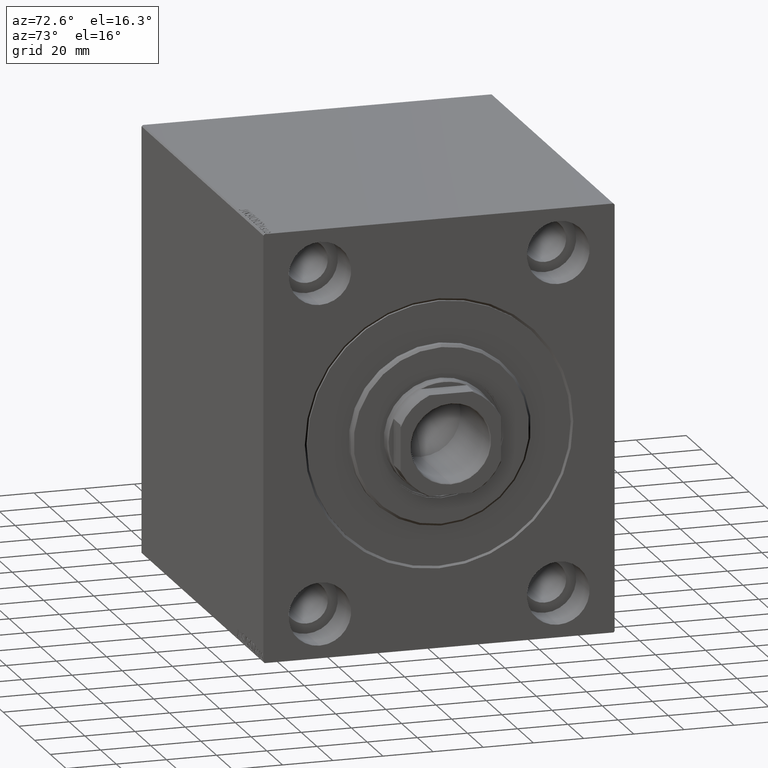
[diagram: clean part render]
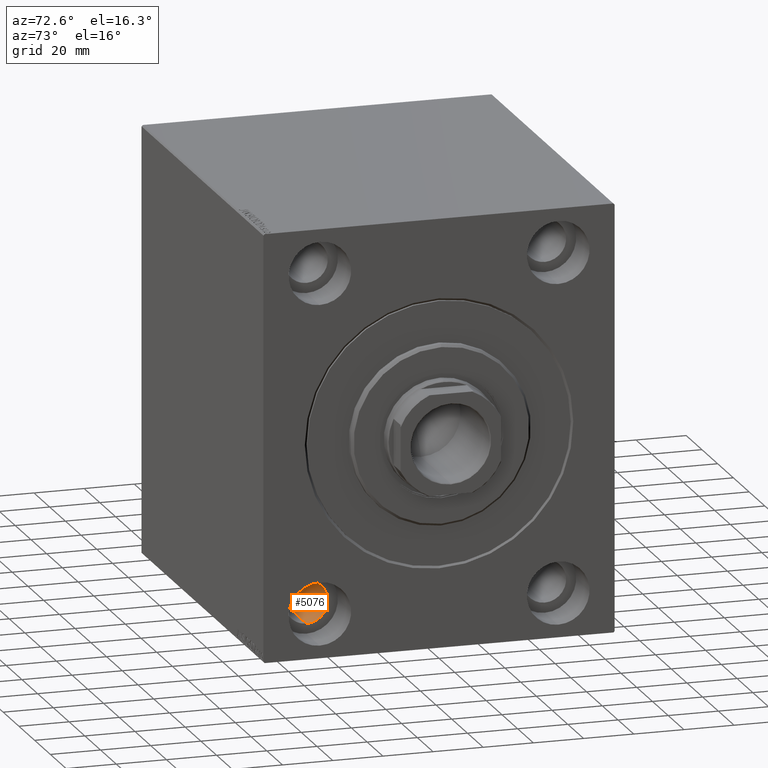
[diagram: same view with one face highlighted and labeled with its STEP entity id]
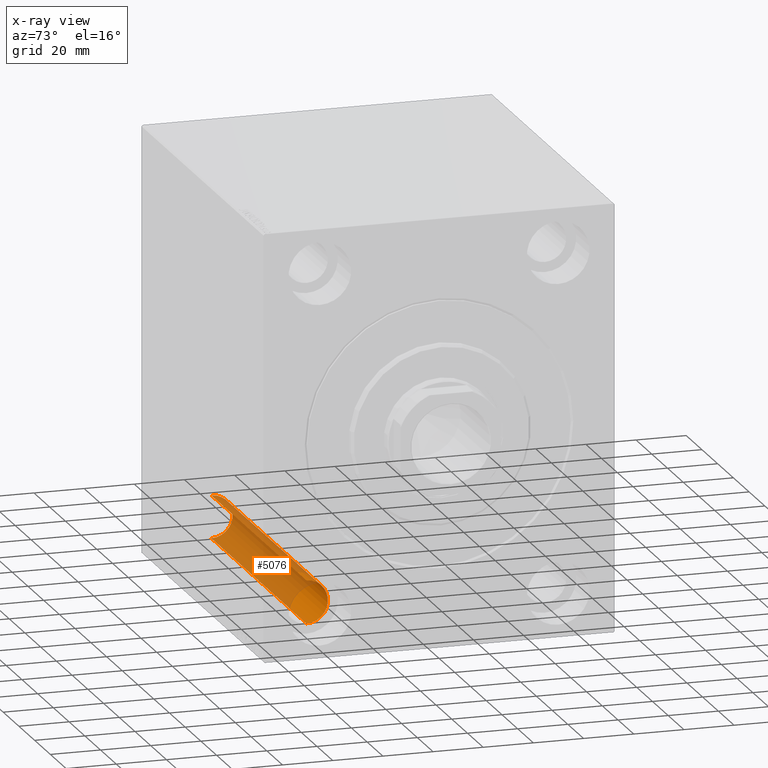
[diagram: x-ray of the same camera — body ghosted, the highlighted face saturated]
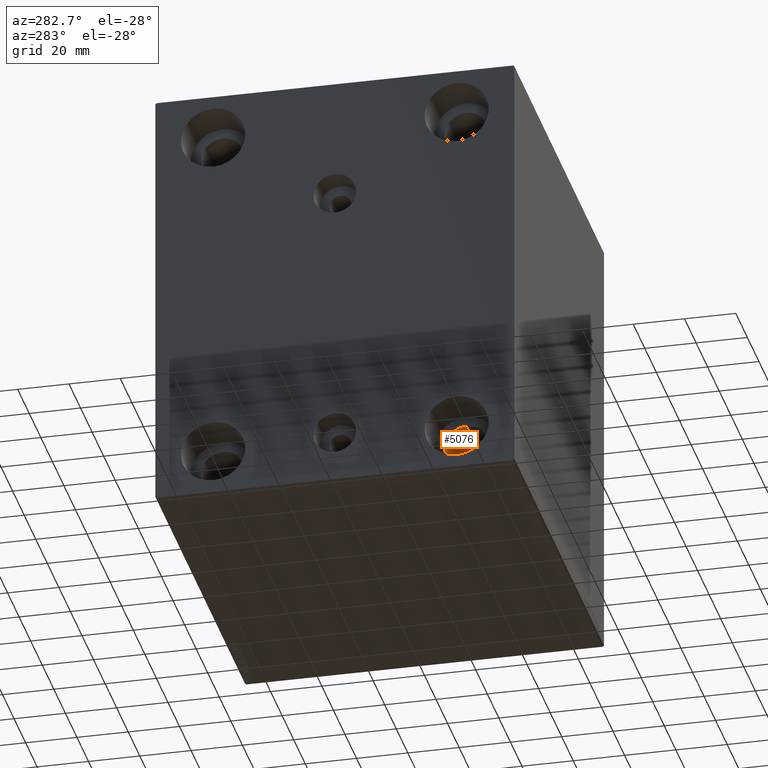
[diagram: same view with one face highlighted and labeled with its STEP entity id]
A machine part, auxiliary view. The second image highlights one B-rep face of the part: STEP entity #5076.
The next image is the same camera in x-ray: the body ghosted, the highlighted face saturated — about 78% of this face is hidden behind the body in this view.
A second angle (auxiliary view) of the same face is appended — the face is thin or edge-on in the first view.
In plain terms, the highlighted cylindrical surface (edge-blend (fillet) strip) has radius 8.5 mm, axis along (1, -0, 0).
Its self-contained STEP definition (entity closure, byte-faithful):
#26 = AXIS2_PLACEMENT_3D ( 'NONE', #4113, #14883, #35533 ) ;
#2374 = LINE ( 'NONE', #40083, #34756 ) ;
#3090 = AXIS2_PLACEMENT_3D ( 'NONE', #5188, #35510, #15506 ) ;
#3217 = VERTEX_POINT ( 'NONE', #20337 ) ;
#3733 = VERTEX_POINT ( 'NONE', #7381 ) ;
#4113 = CARTESIAN_POINT ( 'NONE',  ( 155.0000000000000284, -47.50000000000000000, 67.49999999999998579 ) ) ;
#5076 = ADVANCED_FACE ( 'NONE', ( #21399 ), #18037, .F. ) ;
#5188 = CARTESIAN_POINT ( 'NONE',  ( 138.0000000000000000, -47.50000000000000000, 67.49999999999998579 ) ) ;
#6588 = EDGE_CURVE ( 'NONE', #37570, #3217, #43804, .T. ) ;
#7088 = EDGE_CURVE ( 'NONE', #3733, #3217, #25161, .T. ) ;
#7179 = CARTESIAN_POINT ( 'NONE',  ( 17.00000000000001421, -47.50000000000000000, 75.99999999999998579 ) ) ;
#7381 = CARTESIAN_POINT ( 'NONE',  ( 138.0000000000000000, -47.50000000000000000, 59.00000000000000000 ) ) ;
#8714 = VECTOR ( 'NONE', #21805, 1000.000000000000000 ) ;
#11693 = CIRCLE ( 'NONE', #3090, 8.499999999999992895 ) ;
#14883 = DIRECTION ( 'NONE',  ( -1.000000000000000000, -0.000000000000000000, -0.000000000000000000 ) ) ;
#15506 = DIRECTION ( 'NONE',  ( 0.000000000000000000, 0.000000000000000000, -1.000000000000000000 ) ) ;
#18037 = CYLINDRICAL_SURFACE ( 'NONE', #26, 8.499999999999992895 ) ;
#20337 = CARTESIAN_POINT ( 'NONE',  ( 17.00000000000001421, -47.50000000000000000, 59.00000000000000000 ) ) ;
#21263 = EDGE_CURVE ( 'NONE', #36140, #37570, #2374, .T. ) ;
#21399 = FACE_OUTER_BOUND ( 'NONE', #28957, .T. ) ;
#21805 = DIRECTION ( 'NONE',  ( -1.000000000000000000, -0.000000000000000000, -0.000000000000000000 ) ) ;
#25161 = LINE ( 'NONE', #34844, #8714 ) ;
#25320 = CARTESIAN_POINT ( 'NONE',  ( 17.00000000000001421, -47.50000000000000000, 67.49999999999998579 ) ) ;
#26389 = DIRECTION ( 'NONE',  ( -1.000000000000000000, -0.000000000000000000, -0.000000000000000000 ) ) ;
#28786 = ORIENTED_EDGE ( 'NONE', *, *, #6588, .T. ) ;
#28957 = EDGE_LOOP ( 'NONE', ( #35281, #34336, #40768, #28786 ) ) ;
#31191 = DIRECTION ( 'NONE',  ( 0.000000000000000000, 0.000000000000000000, 1.000000000000000000 ) ) ;
#34336 = ORIENTED_EDGE ( 'NONE', *, *, #41064, .F. ) ;
#34756 = VECTOR ( 'NONE', #26389, 1000.000000000000000 ) ;
#34844 = CARTESIAN_POINT ( 'NONE',  ( 155.0000000000000284, -47.50000000000000000, 59.00000000000000000 ) ) ;
#35209 = AXIS2_PLACEMENT_3D ( 'NONE', #25320, #35218, #31191 ) ;
#35218 = DIRECTION ( 'NONE',  ( -1.000000000000000000, 0.000000000000000000, 0.000000000000000000 ) ) ;
#35281 = ORIENTED_EDGE ( 'NONE', *, *, #7088, .F. ) ;
#35510 = DIRECTION ( 'NONE',  ( -1.000000000000000000, -0.000000000000000000, -0.000000000000000000 ) ) ;
#35533 = DIRECTION ( 'NONE',  ( 0.000000000000000000, 0.000000000000000000, 1.000000000000000000 ) ) ;
#36140 = VERTEX_POINT ( 'NONE', #37599 ) ;
#37570 = VERTEX_POINT ( 'NONE', #7179 ) ;
#37599 = CARTESIAN_POINT ( 'NONE',  ( 138.0000000000000000, -47.50000000000000000, 75.99999999999998579 ) ) ;
#40083 = CARTESIAN_POINT ( 'NONE',  ( 155.0000000000000284, -47.50000000000000000, 75.99999999999998579 ) ) ;
#40768 = ORIENTED_EDGE ( 'NONE', *, *, #21263, .T. ) ;
#41064 = EDGE_CURVE ( 'NONE', #36140, #3733, #11693, .T. ) ;
#43804 = CIRCLE ( 'NONE', #35209, 8.499999999999992895 ) ;